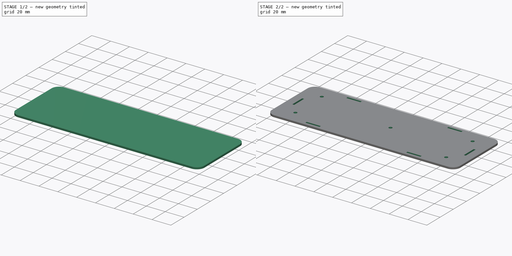
[diagram: build sequence overview — one tinted view per stage of 2, left to right]
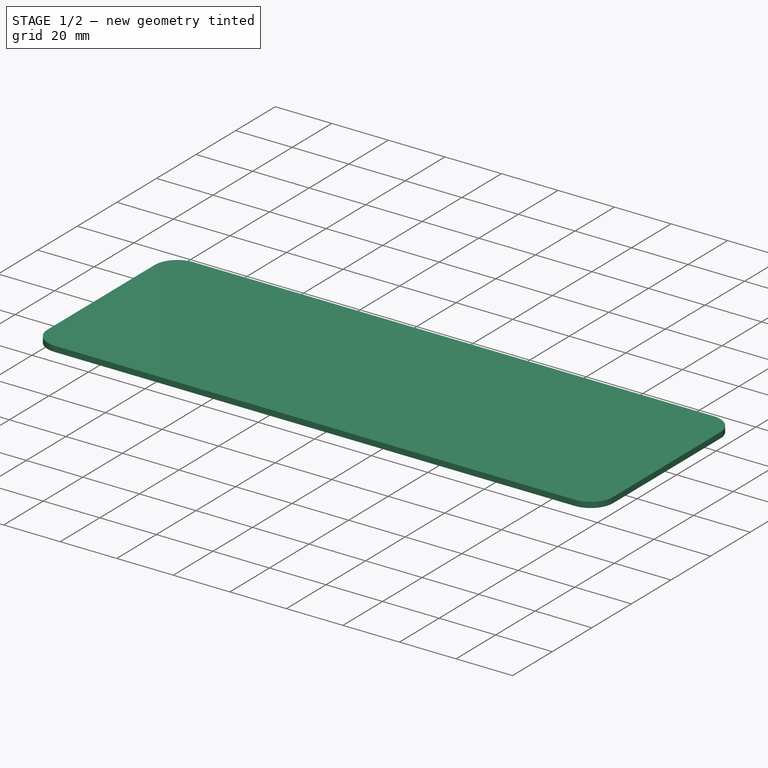
[diagram: stage 1 of 2 — iso view after this stage's code; geometry added in this stage tinted green]
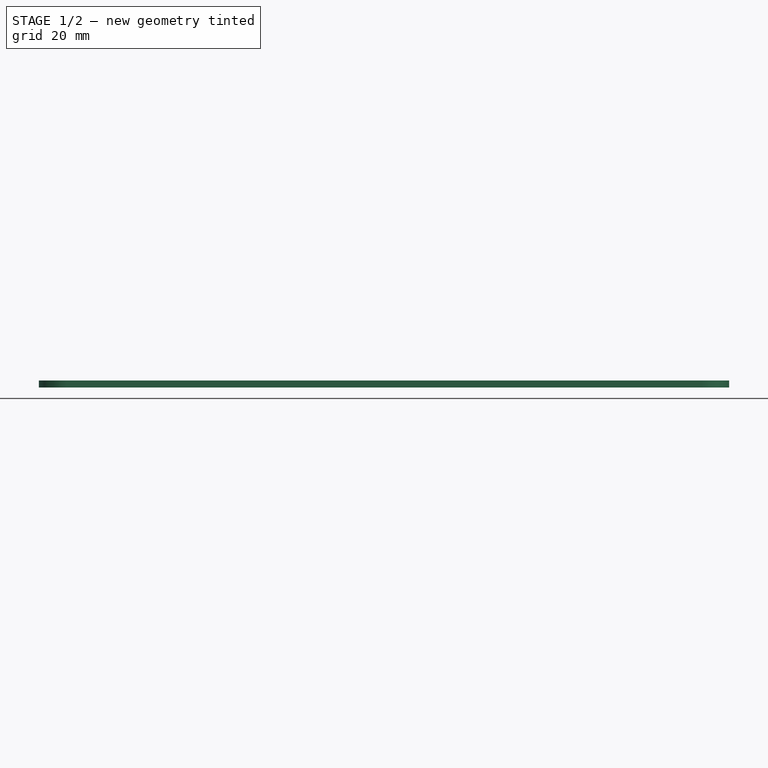
[diagram: stage 1 of 2 — front view after this stage's code; geometry added in this stage tinted green]
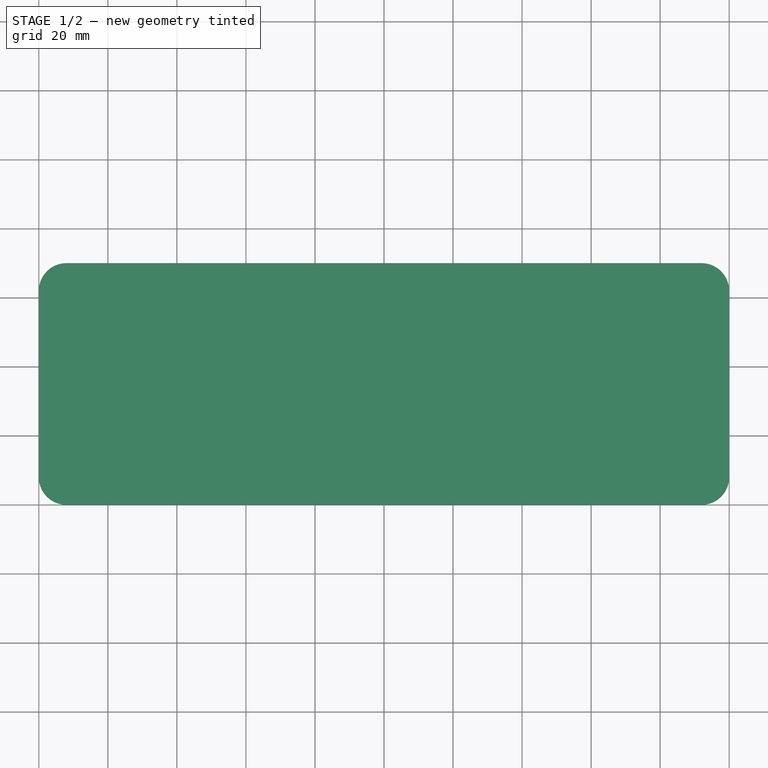
[diagram: stage 1 of 2 — top view after this stage's code; geometry added in this stage tinted green]
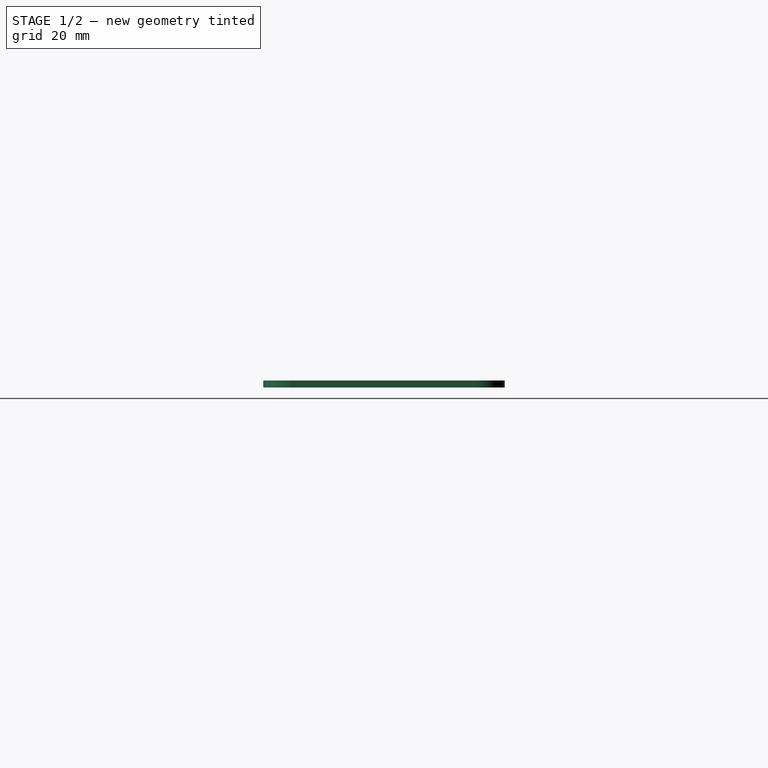
[diagram: stage 1 of 2 — right view after this stage's code; geometry added in this stage tinted green]
FCSTD DOCUMENT  (FreeCAD 1.0R39109 (Git))
Label: aimiya_bt_spk_top_bot
License: All rights reserved
LicenseURL: https://en.wikipedia.org/wiki/All_rights_reserved
objects: Sketcher::SketchObject×2, PartDesign::Pad×1, PartDesign::Fillet×1, PartDesign::Pocket×1, PartDesign::Body×1
note: 14 computed .brp shape members not serialized (recipe doc carries the construction recipe); baked Part::Feature solids carry a one-line shape summary decoded from their .brp

FEATURE [Sketcher::SketchObject] Sketch  label="holes"
  ArcFitTolerance = 1e-06
  AttachmentSupport = -> [XY_Plane]
  FullyConstrained = true
  MakeInternals = false
  MapMode = 5
  sketch-geometry (51):
    g0: LineSegment [constr] StartX=0 StartY=0 StartZ=0 EndX=200 EndY=0 EndZ=0
    g1: LineSegment [constr] StartX=200 StartY=0 StartZ=0 EndX=200 EndY=70 EndZ=0
    g2: LineSegment [constr] StartX=200 StartY=70 StartZ=0 EndX=0 EndY=70 EndZ=0
    g3: LineSegment [constr] StartX=0 StartY=70 StartZ=0 EndX=0 EndY=0 EndZ=0
    g4: LineSegment [constr] StartX=0 StartY=35 StartZ=0 EndX=200 EndY=35 EndZ=0
    g5: LineSegment [constr] StartX=100 StartY=70 StartZ=0 EndX=100 EndY=0 EndZ=0
    g6: LineSegment [constr] StartX=10 StartY=5 StartZ=0 EndX=190 EndY=5 EndZ=0
    g7: LineSegment [constr] StartX=190 StartY=5 StartZ=0 EndX=190 EndY=65 EndZ=0
    g8: LineSegment [constr] StartX=190 StartY=65 StartZ=0 EndX=10 EndY=65 EndZ=0
    g9: LineSegment [constr] StartX=10 StartY=65 StartZ=0 EndX=10 EndY=5 EndZ=0
    g10: GeomPoint [constr] X=100 Y=35 Z=0
    g11: LineSegment [constr] StartX=20 StartY=65 StartZ=0 EndX=20 EndY=5 EndZ=0
    g12: Circle CenterX=20 CenterY=55 CenterZ=0 NormalX=0 NormalY=0 NormalZ=1 AngleXU=0 Radius=1.75
    g13: LineSegment [constr] StartX=46.5 StartY=65 StartZ=0 EndX=46.5 EndY=5 EndZ=0
    g14: LineSegment StartX=39 StartY=65 StartZ=0 EndX=54 EndY=65 EndZ=0
    g15: LineSegment StartX=54 StartY=65 StartZ=0 EndX=54 EndY=67 EndZ=0
    g16: LineSegment StartX=54 StartY=67 StartZ=0 EndX=39 EndY=67 EndZ=0
    g17: LineSegment StartX=39 StartY=67 StartZ=0 EndX=39 EndY=65 EndZ=0
    g18: LineSegment [constr] StartX=46.5 StartY=67 StartZ=0 EndX=46.5 EndY=65 EndZ=0
    g19: Circle CenterX=20 CenterY=15 CenterZ=0 NormalX=0 NormalY=0 NormalZ=1 AngleXU=0 Radius=1.75
    g20: LineSegment StartX=39 StartY=5 StartZ=0 EndX=54 EndY=5 EndZ=0
    g21: LineSegment StartX=54 StartY=5 StartZ=0 EndX=54 EndY=3 EndZ=0
    g22: LineSegment StartX=54 StartY=3 StartZ=0 EndX=39 EndY=3 EndZ=0
    g23: LineSegment StartX=39 StartY=3 StartZ=0 EndX=39 EndY=5 EndZ=0
    g24: GeomPoint [constr] X=10 Y=35 Z=0
    g25: GeomPoint [constr] X=10 Y=35 Z=0
    g26: Circle CenterX=180 CenterY=55 CenterZ=0 NormalX=0 NormalY=0 NormalZ=1 AngleXU=0 Radius=1.75
    g27: LineSegment StartX=161 StartY=65 StartZ=0 EndX=146 EndY=65 EndZ=0
    g28: LineSegment StartX=146 StartY=65 StartZ=0 EndX=146 EndY=67 EndZ=0
    g29: LineSegment StartX=146 StartY=67 StartZ=0 EndX=161 EndY=67 EndZ=0
    g30: LineSegment StartX=161 StartY=67 StartZ=0 EndX=161 EndY=65 EndZ=0
    g31: Circle CenterX=180 CenterY=15 CenterZ=0 NormalX=0 NormalY=0 NormalZ=1 AngleXU=0 Radius=1.75
    g32: LineSegment StartX=161 StartY=5 StartZ=0 EndX=146 EndY=5 EndZ=0
    g33: LineSegment StartX=146 StartY=5 StartZ=0 EndX=146 EndY=3 EndZ=0
    g34: LineSegment StartX=146 StartY=3 StartZ=0 EndX=161 EndY=3 EndZ=0
    g35: LineSegment StartX=161 StartY=3 StartZ=0 EndX=161 EndY=5 EndZ=0
    g36: LineSegment [constr] StartX=90 StartY=20 StartZ=0 EndX=110 EndY=20 EndZ=0
    g37: LineSegment [constr] StartX=110 StartY=20 StartZ=0 EndX=110 EndY=65 EndZ=0
    g38: LineSegment [constr] StartX=110 StartY=65 StartZ=0 EndX=90 EndY=65 EndZ=0
    g39: LineSegment [constr] StartX=90 StartY=65 StartZ=0 EndX=90 EndY=20 EndZ=0
    g40: GeomPoint [constr] X=100 Y=42.5 Z=0
    g41: Circle CenterX=105.5 CenterY=37 CenterZ=0 NormalX=0 NormalY=0 NormalZ=1 AngleXU=0 Radius=1.75
    g42: LineSegment StartX=8 StartY=42.5 StartZ=0 EndX=8 EndY=27.5 EndZ=0
    g43: LineSegment StartX=8 StartY=27.5 StartZ=0 EndX=10 EndY=27.5 EndZ=0
    g44: LineSegment StartX=10 StartY=27.5 StartZ=0 EndX=10 EndY=42.5 EndZ=0
    g45: LineSegment StartX=10 StartY=42.5 StartZ=0 EndX=8 EndY=42.5 EndZ=0
    g46: LineSegment [constr] StartX=8 StartY=35 StartZ=0 EndX=10 EndY=35 EndZ=0
    g47: LineSegment StartX=192 StartY=42.5 StartZ=0 EndX=192 EndY=27.5 EndZ=0
    g48: LineSegment StartX=192 StartY=27.5 StartZ=0 EndX=190 EndY=27.5 EndZ=0
    g49: LineSegment StartX=190 StartY=27.5 StartZ=0 EndX=190 EndY=42.5 EndZ=0
    g50: LineSegment StartX=190 StartY=42.5 StartZ=0 EndX=192 EndY=42.5 EndZ=0
  constraints (120):
    c: Coincident(g0,g1)
    c: Coincident(g1,g2)
    c: Coincident(g2,g3)
    c: Coincident(g3,g0)
    c: Horizontal(g0)
    c: Horizontal(g2)
    c: Vertical(g1)
    c: Vertical(g3)
    c: Distance(g1,g3) = 200
    c: Distance(g0,g2) = 70
    c: Coincident(g0,g-1)
    c: Symmetric(g3,g3,g4)
    c: Symmetric(g1,g1,g4)
    c: Symmetric(g2,g2,g5)
    c: Symmetric(g0,g0,g5)
    c: Coincident(g6,g7)
    c: Coincident(g7,g8)
    c: Coincident(g8,g9)
    c: Coincident(g9,g6)
    c: Horizontal(g6)
    c: Horizontal(g8)
    c: Vertical(g7)
    c: Vertical(g9)
    c: Symmetric(g8,g6,g10)
    c: Distance(g7,g9) = 180
    c: Distance(g6,g8) = 60
    c: Symmetric(g4,g4,g10)
    c: Distance(g11) = 60
    c: Vertical(g11)
    c: PointOnObject(g11,g8)
    c: Distance(g11,g9) = 10
    c: Diameter(g12) = 3.5
    c: PointOnObject(g12,g11)
    c: Distance(g12,g8) = 10
    c: Vertical(g13)
    c: PointOnObject(g13,g8)
    c: PointOnObject(g13,g6)
    c: Distance(g5,g13) = 53.5
    c: Coincident(g14,g15)
    c: Coincident(g15,g16)
    c: Coincident(g16,g17)
    c: Coincident(g17,g14)
    c: Horizontal(g14)
    c: Horizontal(g16)
    c: Vertical(g15)
    c: Vertical(g17)
    c: Distance(g15,g17) = 15
    c: Distance(g14,g16) = 2
    c: Symmetric(g16,g16,g18)
    c: Symmetric(g14,g14,g18)
    c: Coincident(g18,g13)
    c: Equal(g12,g19)
    c: Symmetric(g12,g19,g4)
    c: Symmetric(g14,g20,g4)
    c: Symmetric(g14,g20,g4)
    c: Symmetric(g15,g21,g4)
    c: Symmetric(g15,g21,g4)
    c: Symmetric(g16,g22,g4)
    c: Symmetric(g16,g22,g4)
    c: Symmetric(g17,g23,g4)
    c: Symmetric(g17,g23,g4)
    c: Symmetric(g9,g9,g24)
    c: Coincident(g25,g24)
    c: Equal(g12,g26)
    c: Symmetric(g12,g26,g5)
    c: Symmetric(g14,g27,g5)
    c: Symmetric(g14,g27,g5)
    c: Symmetric(g15,g28,g5)
    c: Symmetric(g15,g28,g5)
    c: Symmetric(g16,g29,g5)
    c: Symmetric(g16,g29,g5)
    c: Symmetric(g17,g30,g5)
    c: Symmetric(g17,g30,g5)
    c: Equal(g19,g31)
    c: Symmetric(g19,g31,g5)
    c: Symmetric(g20,g32,g5)
    c: Symmetric(g20,g32,g5)
    c: Symmetric(g21,g33,g5)
    c: Symmetric(g21,g33,g5)
    c: Symmetric(g22,g34,g5)
    c: Symmetric(g22,g34,g5)
    c: Symmetric(g23,g35,g5)
    c: Symmetric(g23,g35,g5)
    c: Coincident(g36,g37)
    c: Coincident(g37,g38)
    c: Coincident(g38,g39)
    c: Coincident(g39,g36)
    c: Horizontal(g36)
    c: Horizontal(g38)
    c: Vertical(g37)
    c: Vertical(g39)
    c: Symmetric(g38,g36,g40)
    c: Distance(g37,g39) = 20
    c: Distance(g36,g38) = 45
    c: PointOnObject(g40,g5)
    c: PointOnObject(g37,g8)
    c: Diameter(g41) = 3.5
    c: Distance(g41,g36) = 17
    c: Distance(g41,g37) = 4.5
    c: Coincident(g42,g43)
    c: Coincident(g43,g44)
    c: Coincident(g44,g45)
    c: Coincident(g45,g42)
    c: Vertical(g42)
    c: Vertical(g44)
    c: Horizontal(g43)
    c: Horizontal(g45)
    c: Distance(g42,g44) = 2
    c: Distance(g43,g45) = 15
    c: Symmetric(g42,g42,g46)
    c: Symmetric(g44,g44,g46)
    c: Coincident(g46,g24)
    c: Symmetric(g42,g47,g5)
    c: Symmetric(g42,g47,g5)
    c: Symmetric(g43,g48,g5)
    c: Symmetric(g43,g48,g5)
    c: Symmetric(g44,g49,g5)
    c: Symmetric(g44,g49,g5)
    c: Symmetric(g45,g50,g5)
    c: Symmetric(g45,g50,g5)
FEATURE [Sketcher::SketchObject] Sketch001
  ArcFitTolerance = 1e-06
  AttachmentSupport = -> [XY_Plane]
  FullyConstrained = true
  MakeInternals = false
  MapMode = 5
  sketch-geometry (4):
    g0: LineSegment StartX=0 StartY=0 StartZ=0 EndX=200 EndY=0 EndZ=0
    g1: LineSegment StartX=200 StartY=0 StartZ=0 EndX=200 EndY=70 EndZ=0
    g2: LineSegment StartX=200 StartY=70 StartZ=0 EndX=0 EndY=70 EndZ=0
    g3: LineSegment StartX=0 StartY=70 StartZ=0 EndX=0 EndY=0 EndZ=0
  constraints (11):
    c: Coincident(g0,g1)
    c: Coincident(g1,g2)
    c: Coincident(g2,g3)
    c: Coincident(g3,g0)
    c: Horizontal(g0)
    c: Horizontal(g2)
    c: Vertical(g1)
    c: Vertical(g3)
    c: Distance(g1,g3) = 200
    c: Distance(g0,g2) = 70
    c: Coincident(g0,g-1)
FEATURE [PartDesign::Pad] Pad
  Direction = (0,0,1)
  Length = 2
  Length2 = 10
  Profile = -> Sketch001
  ReferenceAxis = -> Sketch001 [N_Axis]
  Refine = true
  Suppressed = false
  Type = 0
FEATURE [PartDesign::Fillet] Fillet
  Base = -> Pad [Edge8,Edge5,Edge1,Edge2]
  BaseFeature = -> Pad
  Radius = 8
  Refine = true
  SupportTransform = false
  Suppressed = false
  UseAllEdges = false
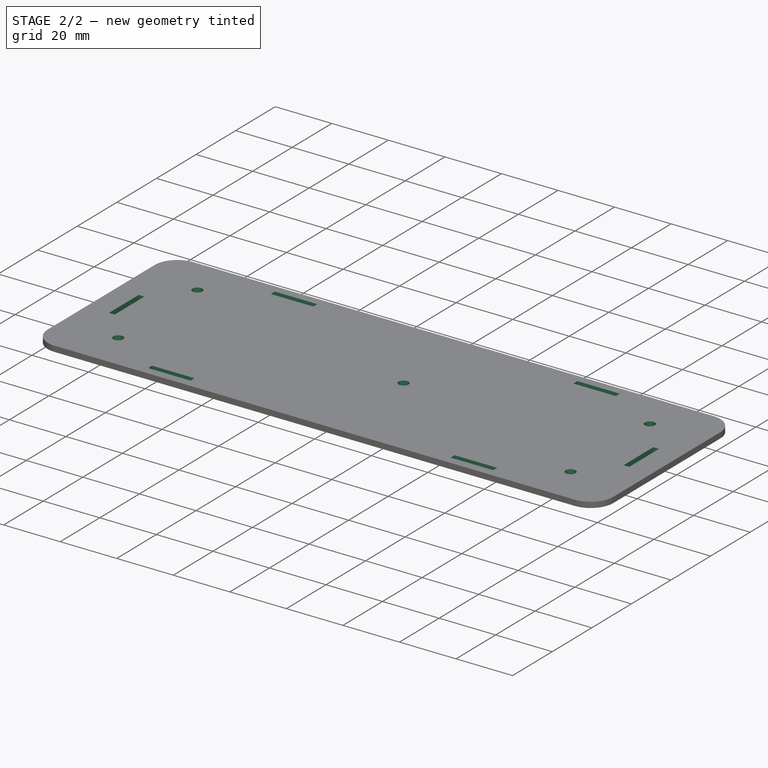
[diagram: stage 2 of 2 — iso view after this stage's code; geometry added in this stage tinted green]
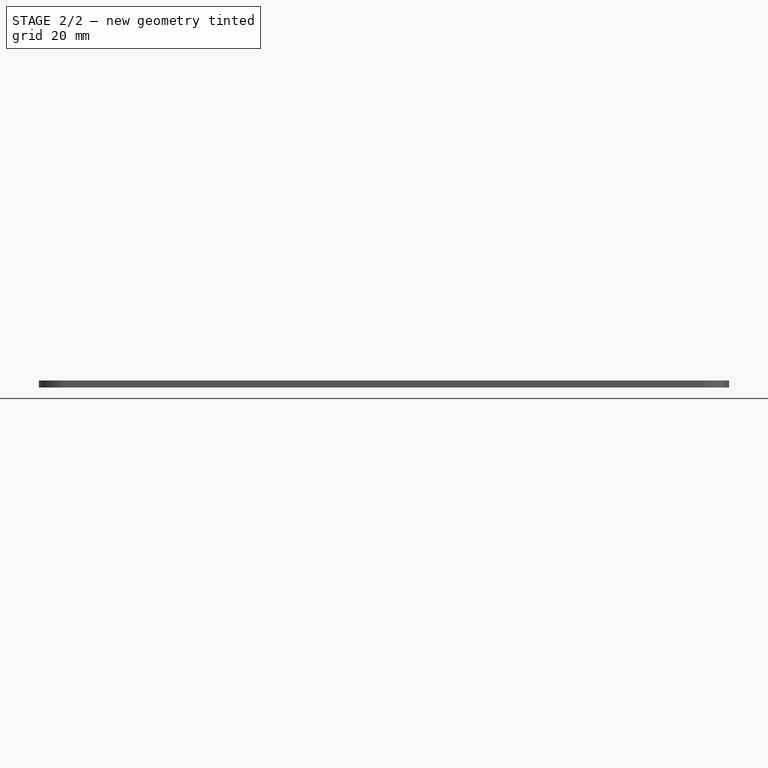
[diagram: stage 2 of 2 — front view after this stage's code; geometry added in this stage tinted green]
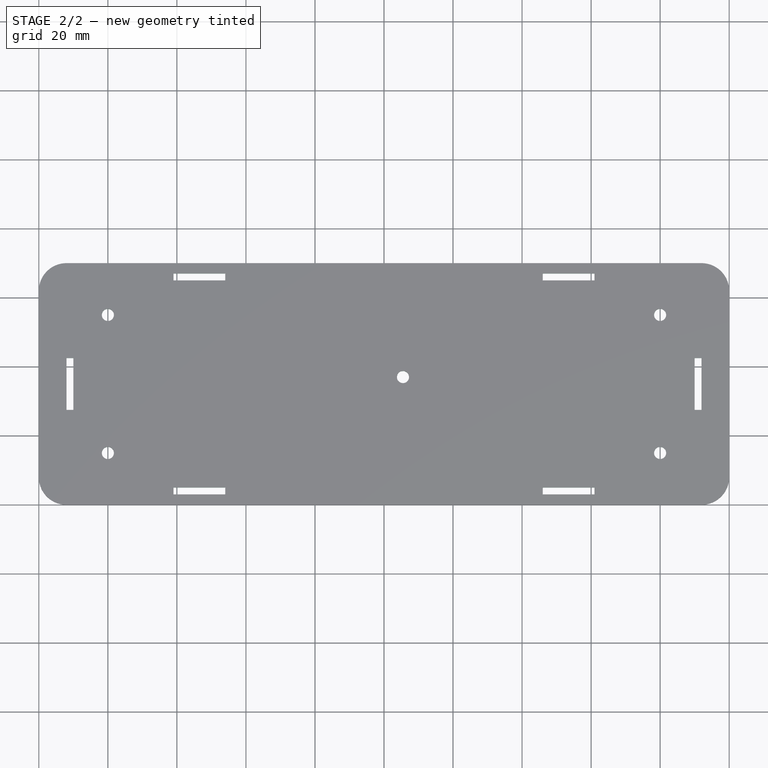
[diagram: stage 2 of 2 — top view after this stage's code; geometry added in this stage tinted green]
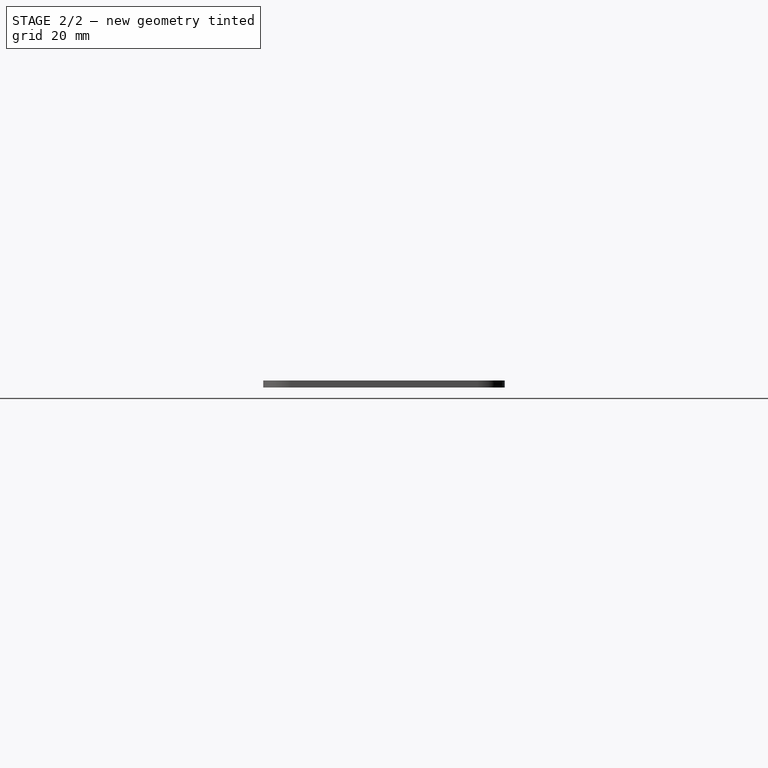
[diagram: stage 2 of 2 — right view after this stage's code; geometry added in this stage tinted green]
FEATURE [PartDesign::Pocket] Pocket
  BaseFeature = -> Fillet
  Direction = (0,0,-1)
  Length = 2
  Length2 = 5
  Profile = -> Sketch
  ReferenceAxis = -> Sketch [N_Axis]
  Refine = true
  Reversed = true
  Suppressed = false
  Type = 0
FEATURE [PartDesign::Body] Body  label="main"
  AllowCompound = false
  Group = -> [Sketch,Sketch001,Pad,Fillet,Pocket]
  Origin = -> Origin
  Tip = -> Pocket
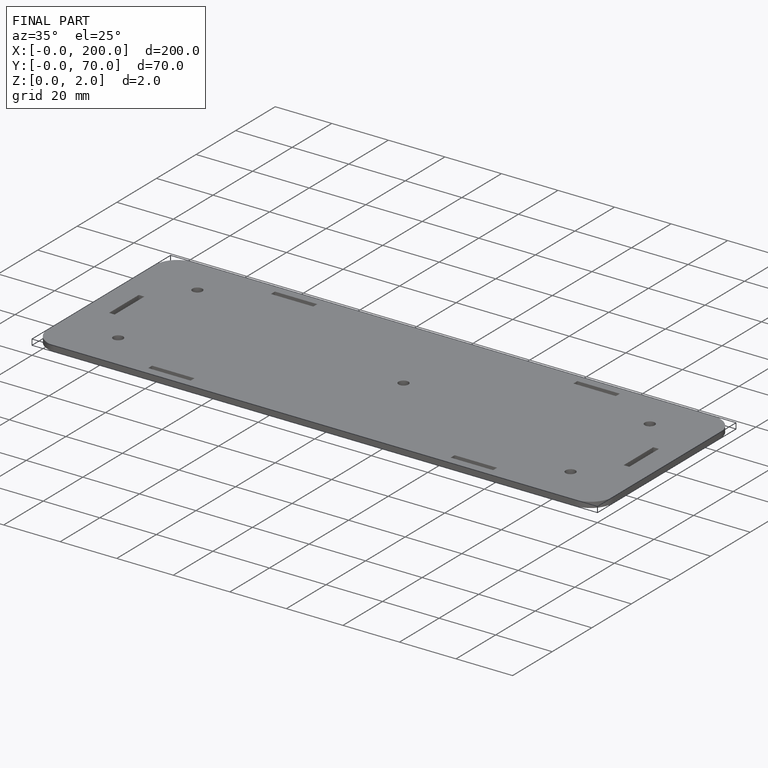
[diagram: finished part — iso view with bounding-box wireframe]
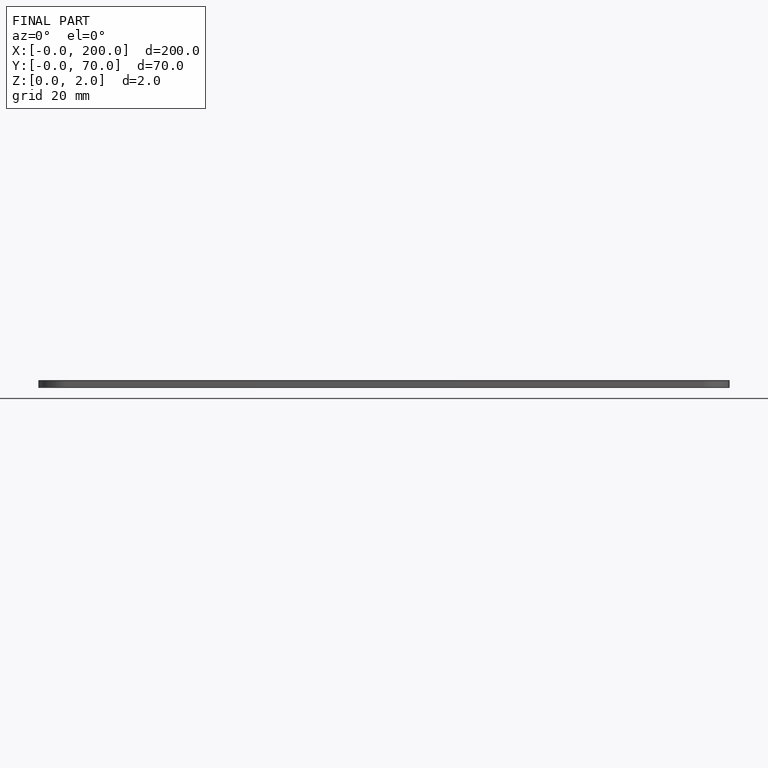
[diagram: finished part — front view with bounding-box wireframe]
